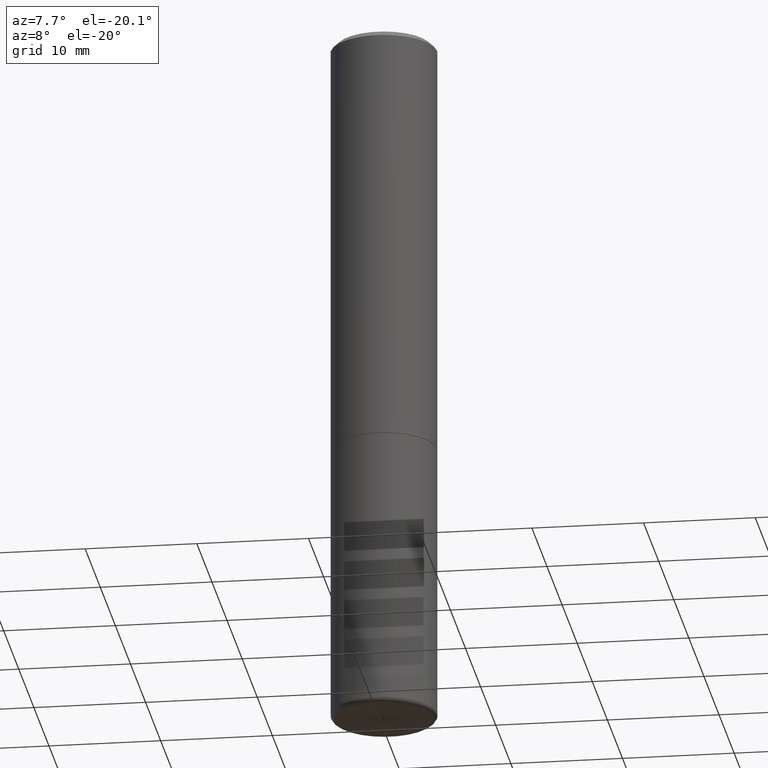
[diagram: clean part render]
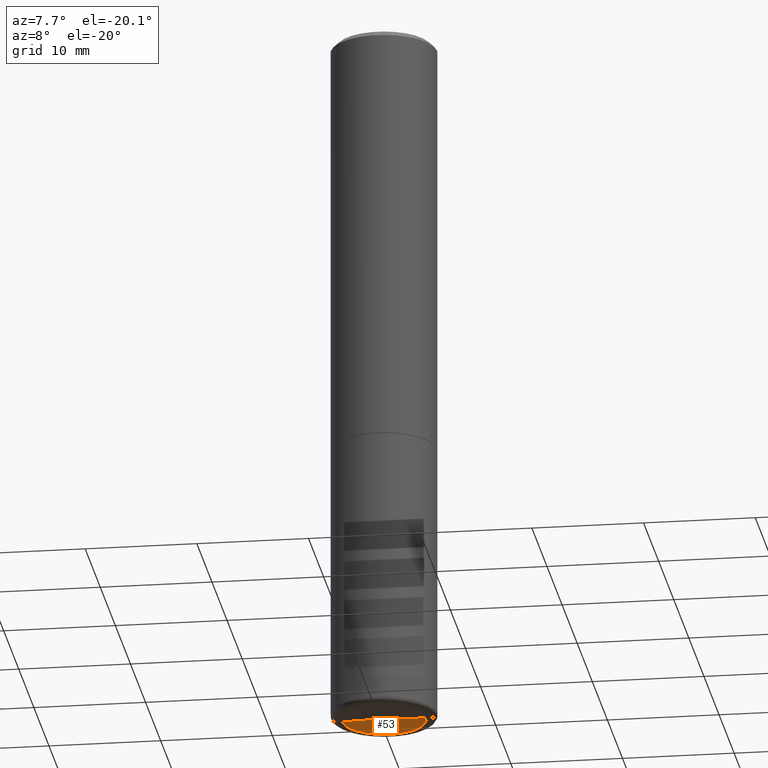
[diagram: same view with one face highlighted and labeled with its STEP entity id]
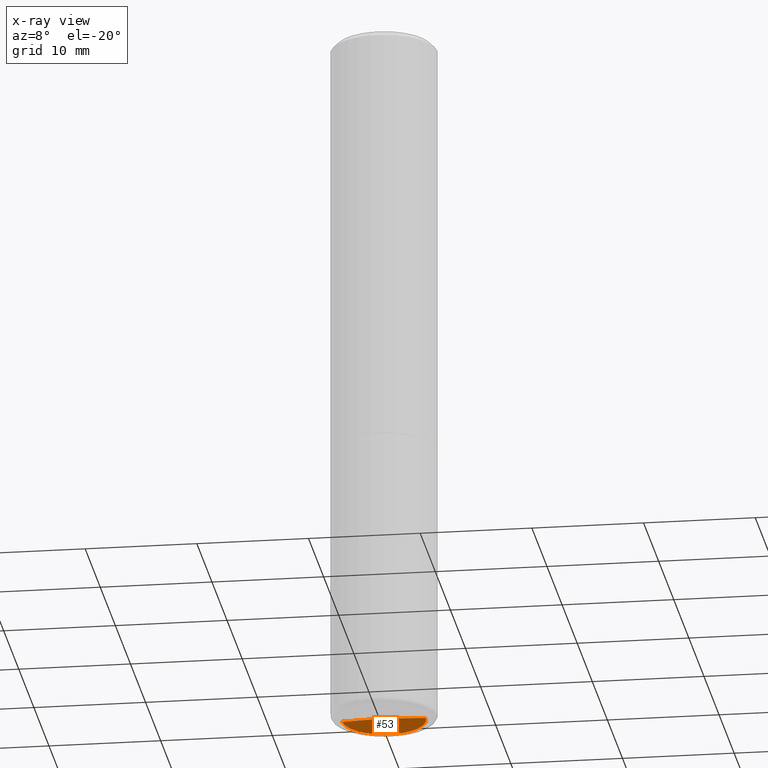
[diagram: x-ray of the same camera — body ghosted, the highlighted face saturated]
A machine part, auxiliary view. The second image highlights one B-rep face of the part: STEP entity #53.
The next image is the same camera in x-ray: the body ghosted, the highlighted face saturated — about 0% of this face is hidden behind the body in this view.
In plain terms, the highlighted conical surface has half-angle 88 deg.
Its self-contained STEP definition (entity closure, byte-faithful):
#27 = CARTESIAN_POINT ( 'NONE',  ( 6.113245216480286544E-29, -8.728093991274226772E-15, -2.499825473552769850 ) ) ;
#53 = ADVANCED_FACE ( 'NONE', ( #428 ), #449, .F. ) ;
#56 = VECTOR ( 'NONE', #414, 39.37007874015748143 ) ;
#61 = EDGE_LOOP ( 'NONE', ( #270, #165, #94 ) ) ;
#94 = ORIENTED_EDGE ( 'NONE', *, *, #331, .F. ) ;
#128 = CARTESIAN_POINT ( 'NONE',  ( 6.100663860505328508E-29, -8.710131149346820000E-15, -2.494680711148467012 ) ) ;
#131 = AXIS2_PLACEMENT_3D ( 'NONE', #27, #186, #479 ) ;
#148 = CARTESIAN_POINT ( 'NONE',  ( 6.113245216480286544E-29, -8.728093991274226772E-15, -2.499825473552769850 ) ) ;
#165 = ORIENTED_EDGE ( 'NONE', *, *, #455, .T. ) ;
#186 = DIRECTION ( 'NONE',  ( -2.445468806185136597E-29, 3.491481338843145583E-15, 1.000000000000000000 ) ) ;
#206 = DIRECTION ( 'NONE',  ( -1.000000000000000000, 6.982962677686263555E-15, 0.000000000000000000 ) ) ;
#216 = CARTESIAN_POINT ( 'NONE',  ( 0.1473267192900327982, -9.738828653981744627E-15, -2.499825473552769850 ) ) ;
#218 = DIRECTION ( 'NONE',  ( 2.445468806185136597E-29, -3.491481338843145583E-15, -1.000000000000000000 ) ) ;
#224 = CARTESIAN_POINT ( 'NONE',  ( -0.1473267192900327982, -7.699317009045966994E-15, -2.499825473552769850 ) ) ;
#227 = CARTESIAN_POINT ( 'NONE',  ( -0.1473267192900327982, -7.699317009045966994E-15, -2.499825473552769850 ) ) ;
#242 = VECTOR ( 'NONE', #254, 39.37007874015748143 ) ;
#254 = DIRECTION ( 'NONE',  ( 0.9993908270190955401, -6.978169709227550954E-15, -0.03489949670250396679 ) ) ;
#259 = CIRCLE ( 'NONE', #131, 0.1473267192900327982 ) ;
#266 = CARTESIAN_POINT ( 'NONE',  ( 0.1473267192900327982, -9.738828653981744627E-15, -2.499825473552769850 ) ) ;
#267 = VERTEX_POINT ( 'NONE', #224 ) ;
#270 = ORIENTED_EDGE ( 'NONE', *, *, #282, .F. ) ;
#282 = EDGE_CURVE ( 'NONE', #453, #445, #360, .T. ) ;
#331 = EDGE_CURVE ( 'NONE', #445, #267, #259, .T. ) ;
#360 = LINE ( 'NONE', #216, #242 ) ;
#412 = AXIS2_PLACEMENT_3D ( 'NONE', #148, #218, #206 ) ;
#414 = DIRECTION ( 'NONE',  ( -0.9993908270190955401, 6.856857904024546215E-15, -0.03489949670250396679 ) ) ;
#420 = LINE ( 'NONE', #227, #56 ) ;
#428 = FACE_OUTER_BOUND ( 'NONE', #61, .T. ) ;
#445 = VERTEX_POINT ( 'NONE', #266 ) ;
#449 = CONICAL_SURFACE ( 'NONE', #412, 0.1473267192900327982, 1.535889741755007032 ) ;
#453 = VERTEX_POINT ( 'NONE', #128 ) ;
#455 = EDGE_CURVE ( 'NONE', #453, #267, #420, .T. ) ;
#479 = DIRECTION ( 'NONE',  ( 1.000000000000000000, -6.982962677686263555E-15, 0.000000000000000000 ) ) ;